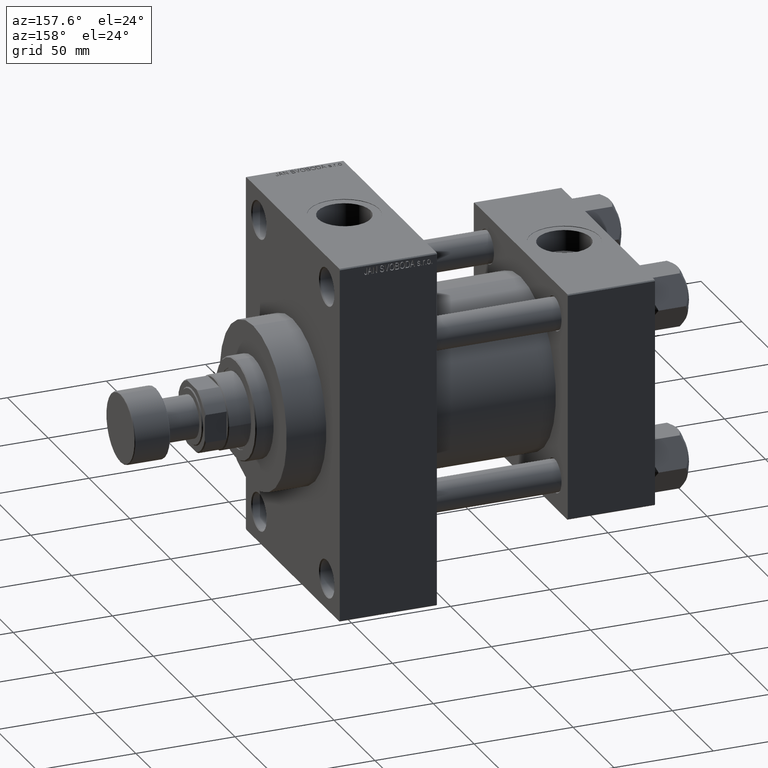
[diagram: clean part render]
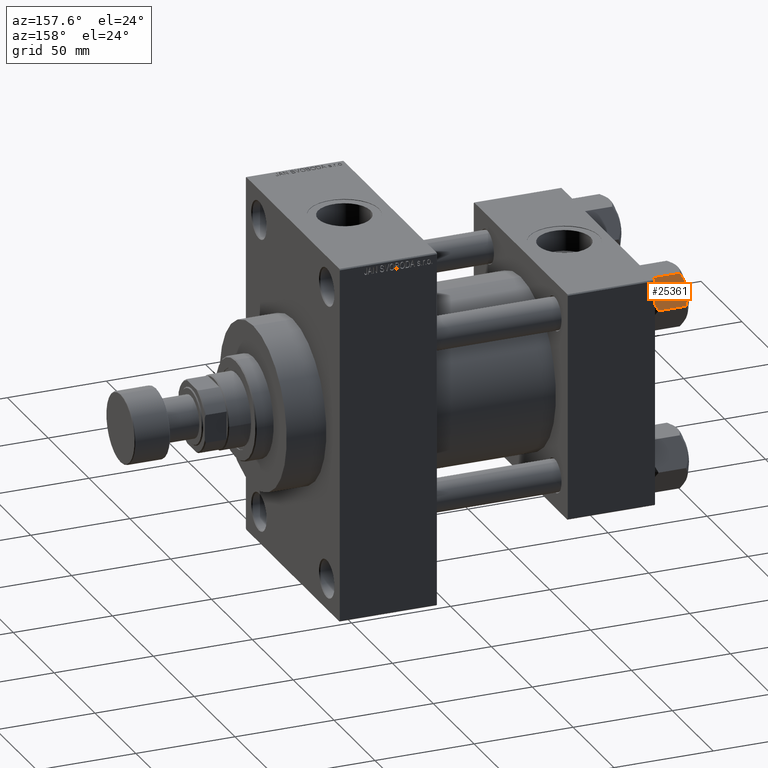
[diagram: same view with one face highlighted and labeled with its STEP entity id]
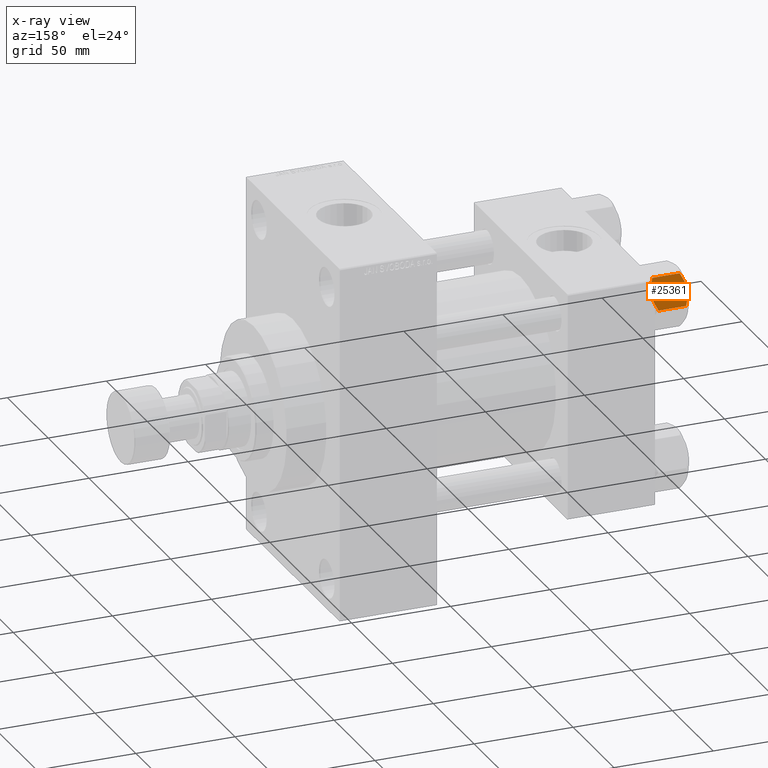
[diagram: x-ray of the same camera — body ghosted, the highlighted face saturated]
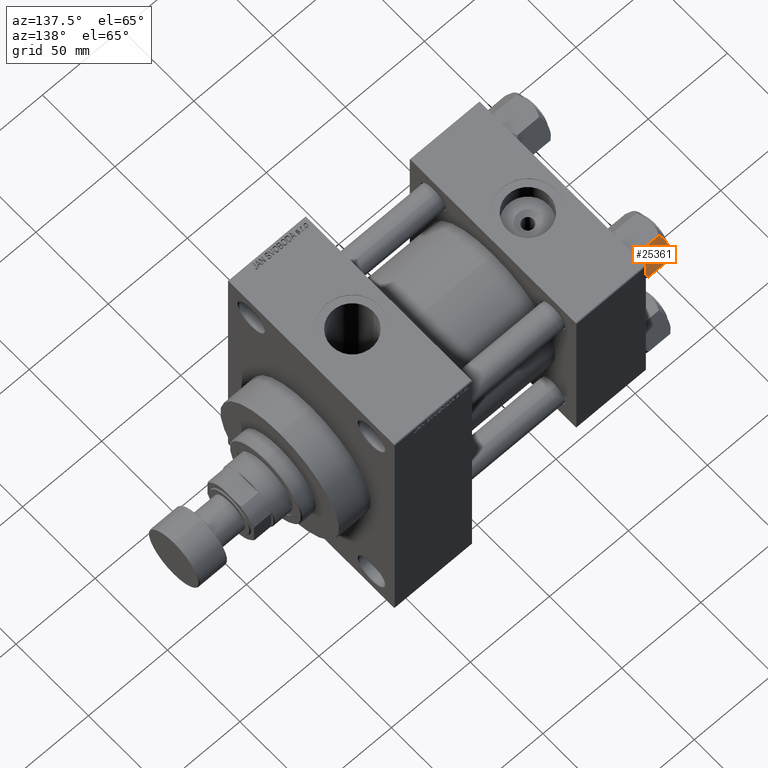
[diagram: same view with one face highlighted and labeled with its STEP entity id]
A machine part, auxiliary view. The second image highlights one B-rep face of the part: STEP entity #25361.
The next image is the same camera in x-ray: the body ghosted, the highlighted face saturated — about 0% of this face is hidden behind the body in this view.
A second angle (auxiliary view) of the same face is appended — the face is thin or edge-on in the first view.
In plain terms, the highlighted planar face has unit normal (0, -0.866, -0.5).
Its self-contained STEP definition (entity closure, byte-faithful):
#132 = CARTESIAN_POINT ( 'NONE',  ( 10.38662926516871998, -9.064464007571853443, -0.2430846701012968625 ) ) ;
#152 = CARTESIAN_POINT ( 'NONE',  ( 7.903528262322674358, -13.36532110482643176, -16.00000000000000000 ) ) ;
#284 = EDGE_CURVE ( 'NONE', #22626, #29180, #48102, .T. ) ;
#445 = VECTOR ( 'NONE', #6872, 1000.000000000000114 ) ;
#2986 = CARTESIAN_POINT ( 'NONE',  ( 13.02784502466562699, -4.489744118371590709, -0.1971866459924545845 ) ) ;
#3866 = VERTEX_POINT ( 'NONE', #39773 ) ;
#3966 = CARTESIAN_POINT ( 'NONE',  ( 7.810000000000002274, -13.52731680711293372, -1.999999999999998224 ) ) ;
#4069 = CARTESIAN_POINT ( 'NONE',  ( 15.52647173767732980, -0.1619957022865074481, -16.00000000000000000 ) ) ;
#5676 = CARTESIAN_POINT ( 'NONE',  ( 11.05297796109637964, -7.910314210667883650, -18.00000000000000000 ) ) ;
#5927 = CARTESIAN_POINT ( 'NONE',  ( 8.202637790192644829, -12.84724820552770908, -16.29368822085855228 ) ) ;
#5951 = LINE ( 'NONE', #20804, #18542 ) ;
#6076 = CARTESIAN_POINT ( 'NONE',  ( 15.62000000000000455, -1.379485931020374819E-15, -16.00000000000000000 ) ) ;
#6393 = CARTESIAN_POINT ( 'NONE',  ( 11.71500000000000341, -6.763658403556471299, -18.00000000000000000 ) ) ;
#6538 = CARTESIAN_POINT ( 'NONE',  ( 15.62000000000000455, -1.379485931020374819E-15, -16.00000000000000000 ) ) ;
#6642 = ORIENTED_EDGE ( 'NONE', *, *, #42139, .F. ) ;
#6872 = DIRECTION ( 'NONE',  ( 0.5000000000000002220, 0.8660254037844384856, -0.000000000000000000 ) ) ;
#7483 = ORIENTED_EDGE ( 'NONE', *, *, #38912, .F. ) ;
#7913 = CARTESIAN_POINT ( 'NONE',  ( 11.38181071908714515, -7.340759166634874155, 7.741881137904304113E-16 ) ) ;
#8315 = CARTESIAN_POINT ( 'NONE',  ( 7.810000000000002274, -13.52731680711293372, -18.00000000000000000 ) ) ;
#8790 = AXIS2_PLACEMENT_3D ( 'NONE', #34714, #9141, #16219 ) ;
#9141 = DIRECTION ( 'NONE',  ( -0.8660254037844385966, 0.5000000000000003331, 0.000000000000000000 ) ) ;
#9568 = EDGE_CURVE ( 'NONE', #38404, #22626, #26401, .T. ) ;
#10084 = ORIENTED_EDGE ( 'NONE', *, *, #34853, .F. ) ;
#10762 = CARTESIAN_POINT ( 'NONE',  ( 15.22736220980736022, -0.6800686015852294153, -1.706311779141445495 ) ) ;
#11571 = VECTOR ( 'NONE', #26099, 1000.000000000000000 ) ;
#11764 = ORIENTED_EDGE ( 'NONE', *, *, #284, .F. ) ;
#12970 = VERTEX_POINT ( 'NONE', #4069 ) ;
#14558 = CARTESIAN_POINT ( 'NONE',  ( 12.04818928091285279, -6.186557640478066666, -17.99999999999999645 ) ) ;
#15802 = LINE ( 'NONE', #40233, #445 ) ;
#16219 = DIRECTION ( 'NONE',  ( -0.5000000000000002220, -0.8660254037844384856, 0.000000000000000000 ) ) ;
#17127 = EDGE_CURVE ( 'NONE', #38884, #47837, #21174, .T. ) ;
#17154 = DIRECTION ( 'NONE',  ( -0.5000000000000002220, -0.8660254037844384856, 0.000000000000000000 ) ) ;
#17346 = CARTESIAN_POINT ( 'NONE',  ( 11.71500000000000341, -6.763658403556471299, 0.000000000000000000 ) ) ;
#17351 = CARTESIAN_POINT ( 'NONE',  ( 11.71500000000000341, -6.763658403556471299, 0.000000000000000000 ) ) ;
#18400 = CARTESIAN_POINT ( 'NONE',  ( 8.502393313253756801, -12.32805640973649197, -1.411989271640069044 ) ) ;
#18542 = VECTOR ( 'NONE', #17154, 1000.000000000000114 ) ;
#19373 = EDGE_LOOP ( 'NONE', ( #7483, #45896, #48080, #31126, #11764, #21032, #6642, #40149, #10084, #23257 ) ) ;
#19575 = DIRECTION ( 'NONE',  ( 0.5000000000000002220, 0.8660254037844384856, -0.000000000000000000 ) ) ;
#20804 = CARTESIAN_POINT ( 'NONE',  ( 15.62000000000000455, -1.379485931020374819E-15, -16.00000000000000000 ) ) ;
#21032 = ORIENTED_EDGE ( 'NONE', *, *, #9568, .F. ) ;
#21174 = LINE ( 'NONE', #43099, #42629 ) ;
#22626 = VERTEX_POINT ( 'NONE', #37902 ) ;
#23014 = CARTESIAN_POINT ( 'NONE',  ( 11.04378428799594936, -7.926238119586006547, -0.05089381635301404999 ) ) ;
#23257 = ORIENTED_EDGE ( 'NONE', *, *, #46091, .F. ) ;
#23484 = VERTEX_POINT ( 'NONE', #41757 ) ;
#25123 = CARTESIAN_POINT ( 'NONE',  ( 14.30591678195076355, -2.276058899034900662, -0.9473872146228133895 ) ) ;
#25361 = ADVANCED_FACE ( 'NONE', ( #38130 ), #34464, .F. ) ;
#25980 = CARTESIAN_POINT ( 'NONE',  ( 15.52647173767732980, -0.1619957022865074481, -16.00000000000000000 ) ) ;
#26099 = DIRECTION ( 'NONE',  ( -0.000000000000000000, -0.000000000000000000, 1.000000000000000000 ) ) ;
#26185 = CARTESIAN_POINT ( 'NONE',  ( 7.903528262322674358, -13.36532110482643176, -2.000000000000000000 ) ) ;
#26401 = LINE ( 'NONE', #37609, #26921 ) ;
#26430 = CARTESIAN_POINT ( 'NONE',  ( 10.06459418565412456, -9.622245127110611307, -0.3836066851120584209 ) ) ;
#26921 = VECTOR ( 'NONE', #19575, 1000.000000000000114 ) ;
#28944 = LINE ( 'NONE', #6538, #31694 ) ;
#29159 = CARTESIAN_POINT ( 'NONE',  ( 14.31545111198821729, -2.259544954993898624, -17.08577173959729834 ) ) ;
#29180 = VERTEX_POINT ( 'NONE', #17346 ) ;
#30258 = EDGE_CURVE ( 'NONE', #29180, #23484, #43753, .T. ) ;
#30916 = VERTEX_POINT ( 'NONE', #152 ) ;
#31126 = ORIENTED_EDGE ( 'NONE', *, *, #30258, .F. ) ;
#31259 = CARTESIAN_POINT ( 'NONE',  ( 8.506059550806615022, -12.32170630002230638, -16.56553707812499709 ) ) ;
#31427 = EDGE_CURVE ( 'NONE', #23484, #47837, #15802, .T. ) ;
#31694 = VECTOR ( 'NONE', #43569, 1000.000000000000114 ) ;
#32192 = CARTESIAN_POINT ( 'NONE',  ( 15.52647173767732980, -0.1619957022865074481, -2.000000000000000000 ) ) ;
#32608 = DIRECTION ( 'NONE',  ( -0.000000000000000000, -0.000000000000000000, 1.000000000000000000 ) ) ;
#32870 = B_SPLINE_CURVE_WITH_KNOTS ( 'NONE', 3,
 ( #25980, #47644, #29159, #33045, #40361, #40837, #14558, #44258 ),
 .UNSPECIFIED., .F., .F.,
 ( 4, 2, 2, 4 ),
 ( 4.472842641901889415E-07, 0.003945636373369311792, 0.005918230917921871344, 0.007890825462474430896 ),
 .UNSPECIFIED. ) ;
#33045 = CARTESIAN_POINT ( 'NONE',  ( 13.36540581434587516, -3.905071680002325962, -17.61639331488793303 ) ) ;
#33248 = CARTESIAN_POINT ( 'NONE',  ( 11.71500000000000341, -6.763658403556471299, 0.000000000000000000 ) ) ;
#34464 = PLANE ( 'NONE',  #8790 ) ;
#34714 = CARTESIAN_POINT ( 'NONE',  ( 15.62000000000000455, -1.379485931020374819E-15, -18.00000000000000000 ) ) ;
#34853 = EDGE_CURVE ( 'NONE', #46536, #30916, #46394, .T. ) ;
#35640 = CARTESIAN_POINT ( 'NONE',  ( 10.40215497533437450, -9.037572688741349225, -17.80281335400754372 ) ) ;
#36383 = CARTESIAN_POINT ( 'NONE',  ( 15.62000000000000455, -1.379485931020374819E-15, -1.999999999999998224 ) ) ;
#36810 = CARTESIAN_POINT ( 'NONE',  ( 13.99051971937274352, -2.822342635978011938, -0.7317196846281139866 ) ) ;
#37609 = CARTESIAN_POINT ( 'NONE',  ( 15.62000000000000455, -1.379485931020374819E-15, -1.999999999999998224 ) ) ;
#37902 = CARTESIAN_POINT ( 'NONE',  ( 7.903528262322674358, -13.36532110482643176, -2.000000000000000000 ) ) ;
#38130 = FACE_OUTER_BOUND ( 'NONE', #19373, .T. ) ;
#38404 = VERTEX_POINT ( 'NONE', #3966 ) ;
#38884 = VERTEX_POINT ( 'NONE', #6076 ) ;
#38912 = EDGE_CURVE ( 'NONE', #38884, #12970, #28944, .T. ) ;
#39534 = CARTESIAN_POINT ( 'NONE',  ( 7.903528262322674358, -13.36532110482643176, -16.00000000000000000 ) ) ;
#39773 = CARTESIAN_POINT ( 'NONE',  ( 7.810000000000002274, -13.52731680711293372, -16.00000000000000000 ) ) ;
#40149 = ORIENTED_EDGE ( 'NONE', *, *, #42924, .F. ) ;
#40233 = CARTESIAN_POINT ( 'NONE',  ( 15.62000000000000455, -1.379485931020374819E-15, -1.999999999999998224 ) ) ;
#40361 = CARTESIAN_POINT ( 'NONE',  ( 13.04337073483127973, -4.462852799541088267, -17.75691532989870325 ) ) ;
#40837 = CARTESIAN_POINT ( 'NONE',  ( 12.38621571200405569, -5.601078687526932498, -17.94910618364698252 ) ) ;
#41284 = CARTESIAN_POINT ( 'NONE',  ( 9.114548888011784200, -11.26777185211904353, -0.9142282604026938930 ) ) ;
#41757 = CARTESIAN_POINT ( 'NONE',  ( 15.52647173767732980, -0.1619957022865074481, -2.000000000000000000 ) ) ;
#42139 = EDGE_CURVE ( 'NONE', #3866, #38404, #45088, .T. ) ;
#42629 = VECTOR ( 'NONE', #32608, 1000.000000000000000 ) ;
#42924 = EDGE_CURVE ( 'NONE', #30916, #3866, #5951, .T. ) ;
#42932 = CARTESIAN_POINT ( 'NONE',  ( 9.124083218049241495, -11.25125790807804016, -17.05261278537718539 ) ) ;
#43099 = CARTESIAN_POINT ( 'NONE',  ( 15.62000000000000455, -1.379485931020374819E-15, -18.00000000000000000 ) ) ;
#43569 = DIRECTION ( 'NONE',  ( -0.5000000000000002220, -0.8660254037844384856, 0.000000000000000000 ) ) ;
#43753 = B_SPLINE_CURVE_WITH_KNOTS ( 'NONE', 3,
 ( #17351, #47286, #2986, #36810, #25123, #43869, #10762, #32192 ),
 .UNSPECIFIED., .F., .F.,
 ( 4, 2, 2, 4 ),
 ( 0.007890825462474425692, 0.01181022244528553977, 0.01376992093669109768, 0.01572961942809665559 ),
 .UNSPECIFIED. ) ;
#43869 = CARTESIAN_POINT ( 'NONE',  ( 14.92394044919338292, -1.205610507090636219, -1.434462921875003349 ) ) ;
#44258 = CARTESIAN_POINT ( 'NONE',  ( 11.71500000000000341, -6.763658403556471299, -18.00000000000000000 ) ) ;
#45088 = LINE ( 'NONE', #8315, #11571 ) ;
#45896 = ORIENTED_EDGE ( 'NONE', *, *, #17127, .T. ) ;
#46091 = EDGE_CURVE ( 'NONE', #12970, #46536, #32870, .T. ) ;
#46108 = CARTESIAN_POINT ( 'NONE',  ( 11.71500000000000341, -6.763658403556471299, -18.00000000000000000 ) ) ;
#46394 = B_SPLINE_CURVE_WITH_KNOTS ( 'NONE', 3,
 ( #6393, #5676, #35640, #47057, #42932, #31259, #5927, #39534 ),
 .UNSPECIFIED., .F., .F.,
 ( 4, 2, 2, 4 ),
 ( 0.007890825462474430896, 0.01181022244528554324, 0.01376992093669110115, 0.01572961942809665906 ),
 .UNSPECIFIED. ) ;
#46536 = VERTEX_POINT ( 'NONE', #46108 ) ;
#47057 = CARTESIAN_POINT ( 'NONE',  ( 9.439480280627259745, -10.70497417113492666, -17.26828031537187869 ) ) ;
#47286 = CARTESIAN_POINT ( 'NONE',  ( 12.37702203890362540, -5.617002596445055396, 1.097754699641572845E-15 ) ) ;
#47644 = CARTESIAN_POINT ( 'NONE',  ( 14.92760668674625535, -1.199260397376455067, -16.58801072835992585 ) ) ;
#47837 = VERTEX_POINT ( 'NONE', #36383 ) ;
#48080 = ORIENTED_EDGE ( 'NONE', *, *, #31427, .F. ) ;
#48102 = B_SPLINE_CURVE_WITH_KNOTS ( 'NONE', 3,
 ( #26185, #18400, #41284, #26430, #132, #23014, #7913, #33248 ),
 .UNSPECIFIED., .F., .F.,
 ( 4, 2, 2, 4 ),
 ( 4.472842641876105202E-07, 0.003945636373369308322, 0.005918230917921867007, 0.007890825462474425692 ),
 .UNSPECIFIED. ) ;